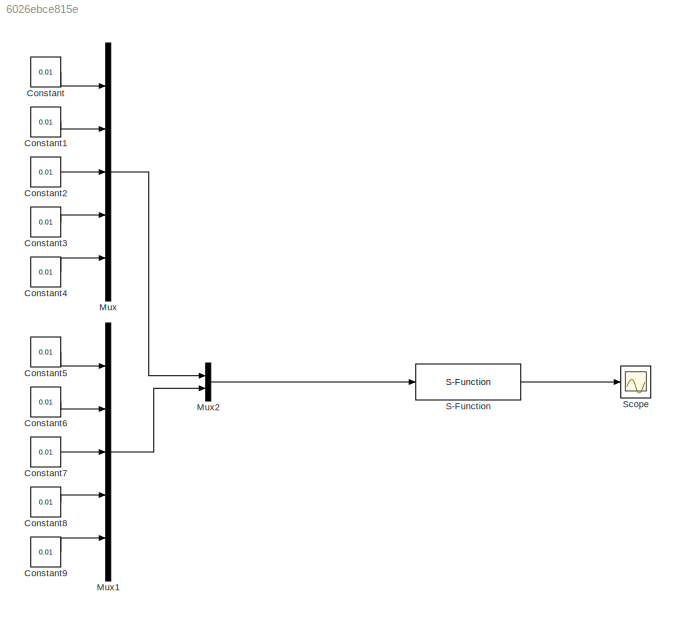
MODEL slx_6026ebce815e
KIND model
CONFIG AbsTol = auto
CONFIG EnableMultiTasking = off
CONFIG FixedStep = auto
CONFIG MaxStep = auto
CONFIG MinStep = auto
CONFIG RelTol = 1e-3
CONFIG SampleTimeConstraint = Unconstrained
CONFIG SolverName = VariableStepAuto
CONFIG StartTime = 0.0
CONFIG StopTime = 10.0
BLOCK [Constant] Constant
  Value = 0.01
BLOCK [Constant] Constant1
  Value = 0.01
BLOCK [Constant] Constant2
  Value = 0.01
BLOCK [Constant] Constant3
  Value = 0.01
BLOCK [Constant] Constant4
  Value = 0.01
BLOCK [Constant] Constant5
  Value = 0.01
BLOCK [Constant] Constant6
  Value = 0.01
BLOCK [Constant] Constant7
  Value = 0.01
BLOCK [Constant] Constant8
  Value = 0.01
BLOCK [Constant] Constant9
  Value = 0.01
BLOCK [Mux] Mux
  DisplayOption = bar
  Inputs = 5
  Ports = [5, 1]
BLOCK [Mux] Mux1
  DisplayOption = bar
  Inputs = 5
  Ports = [5, 1]
BLOCK [Mux] Mux2
  DisplayOption = bar
  Inputs = 2
  Ports = [2, 1]
BLOCK [S-Function] S-Function
  EnableBusSupport = off
  FunctionName = ekf_s_function
  Ports = [1, 1]
  SFcnIsStateOwnerBlock = off
  SFunctionDeploymentMode = off
BLOCK [Scope] Scope
  Floating = off
  NumInputPorts = 1
  Ports = [1]
  ScopeSpecificationString = Simulink.scopes.TimeScopeBlockCfg('CurrentConfiguration', extmgr.ConfigurationSet(extmgr.Configuration('Core','General UI',true),extmgr.Configuration('Core','Source UI',true),extmgr.Configuration('Sources','WiredSimulink',true),extmgr.Configuration('Visuals','Time Domain',true,'SerializedDisplays',{struct('MinYLimReal','-96.13536','MaxYLimReal','66.43271','YLabelReal','','MinYLimMag','0.00000','Ma...<+1456ch>
LINE Constant1:1 -> Mux:2
LINE Constant2:1 -> Mux:3
LINE Constant3:1 -> Mux:4
LINE Constant4:1 -> Mux:5
LINE Constant5:1 -> Mux1:1
LINE Constant6:1 -> Mux1:2
LINE Constant7:1 -> Mux1:3
LINE Constant8:1 -> Mux1:4
LINE Constant9:1 -> Mux1:5
LINE Constant:1 -> Mux:1
LINE Mux1:1 -> Mux2:2
LINE Mux2:1 -> S-Function:1
LINE Mux:1 -> Mux2:1
LINE S-Function:1 -> Scope:1
